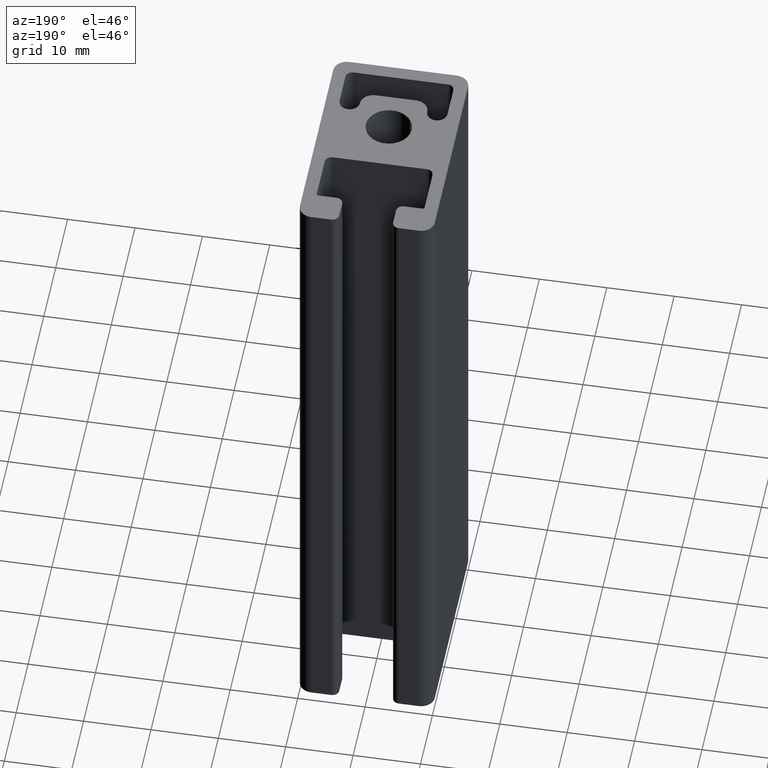
[diagram: clean part render]
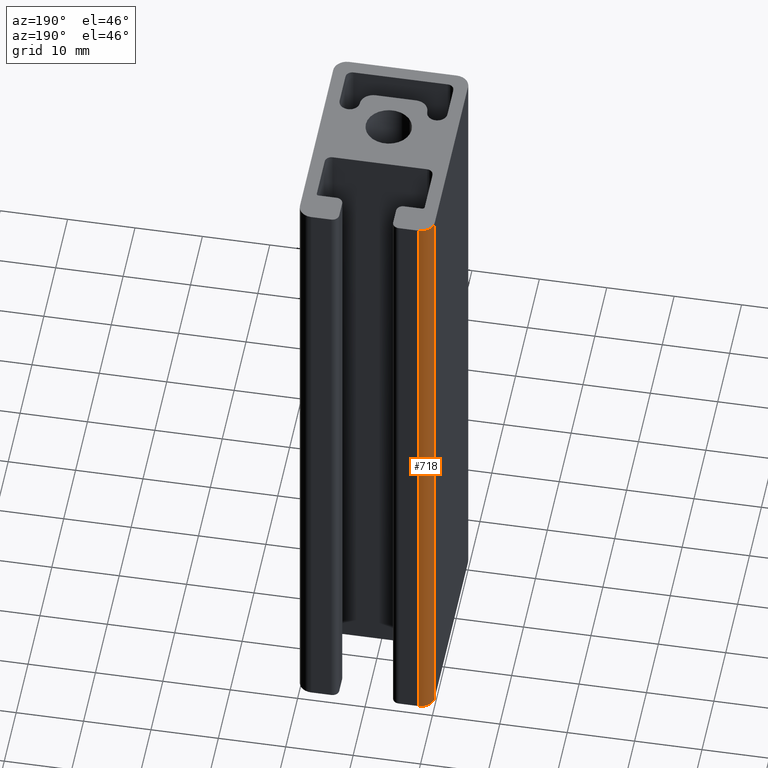
[diagram: same view with one face highlighted and labeled with its STEP entity id]
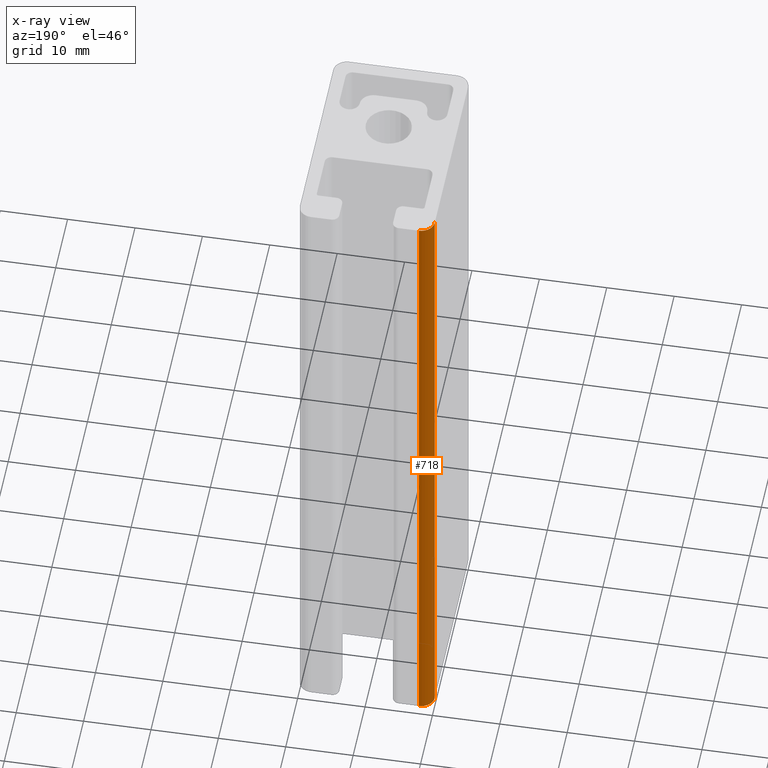
[diagram: x-ray of the same camera — body ghosted, the highlighted face saturated]
A machine part, auxiliary view. The second image highlights one B-rep face of the part: STEP entity #718.
The next image is the same camera in x-ray: the body ghosted, the highlighted face saturated — about 0% of this face is hidden behind the body in this view.
In plain terms, the highlighted cylindrical surface (edge-blend (fillet) strip) has radius 2 mm, axis along (0, 0, 1).
Its self-contained STEP definition (entity closure, byte-faithful):
#64=LINE('',#1183,#130);
#72=LINE('',#1204,#138);
#130=VECTOR('',#967,100.);
#138=VECTOR('',#985,100.);
#200=FACE_OUTER_BOUND('',#238,.T.);
#238=EDGE_LOOP('',(#579,#580,#581,#582));
#281=CIRCLE('',#790,1.99999999999999);
#282=CIRCLE('',#791,1.99999999999999);
#341=VERTEX_POINT('',#1180);
#342=VERTEX_POINT('',#1182);
#349=VERTEX_POINT('',#1201);
#350=VERTEX_POINT('',#1203);
#436=EDGE_CURVE('',#341,#342,#64,.T.);
#446=EDGE_CURVE('',#350,#349,#72,.T.);
#448=EDGE_CURVE('',#349,#342,#281,.T.);
#449=EDGE_CURVE('',#350,#341,#282,.T.);
#579=ORIENTED_EDGE('',*,*,#448,.T.);
#580=ORIENTED_EDGE('',*,*,#436,.F.);
#581=ORIENTED_EDGE('',*,*,#449,.F.);
#582=ORIENTED_EDGE('',*,*,#446,.T.);
#685=CYLINDRICAL_SURFACE('',#789,1.99999999999999);
#718=ADVANCED_FACE('',(#200),#685,.T.);
#789=AXIS2_PLACEMENT_3D('',#1206,#987,#988);
#790=AXIS2_PLACEMENT_3D('',#1207,#989,#990);
#791=AXIS2_PLACEMENT_3D('',#1208,#991,#992);
#967=DIRECTION('',(0.,0.,1.));
#985=DIRECTION('',(0.,0.,1.));
#987=DIRECTION('center_axis',(0.,0.,1.));
#988=DIRECTION('ref_axis',(-2.7755575615629E-15,-1.,0.));
#989=DIRECTION('center_axis',(0.,0.,-1.));
#990=DIRECTION('ref_axis',(-2.7755575615629E-15,-1.,0.));
#991=DIRECTION('center_axis',(0.,0.,-1.));
#992=DIRECTION('ref_axis',(-2.7755575615629E-15,-1.,0.));
#1180=CARTESIAN_POINT('',(-8.00000000000001,20.,0.));
#1182=CARTESIAN_POINT('',(-8.00000000000001,20.,100.));
#1183=CARTESIAN_POINT('',(-8.00000000000001,20.,0.));
#1201=CARTESIAN_POINT('',(-10.,18.,100.));
#1203=CARTESIAN_POINT('',(-10.,18.,0.));
#1204=CARTESIAN_POINT('',(-10.,18.,0.));
#1206=CARTESIAN_POINT('Origin',(-8.00000000000001,18.,0.));
#1207=CARTESIAN_POINT('Origin',(-8.00000000000001,18.,100.));
#1208=CARTESIAN_POINT('Origin',(-8.00000000000001,18.,0.));